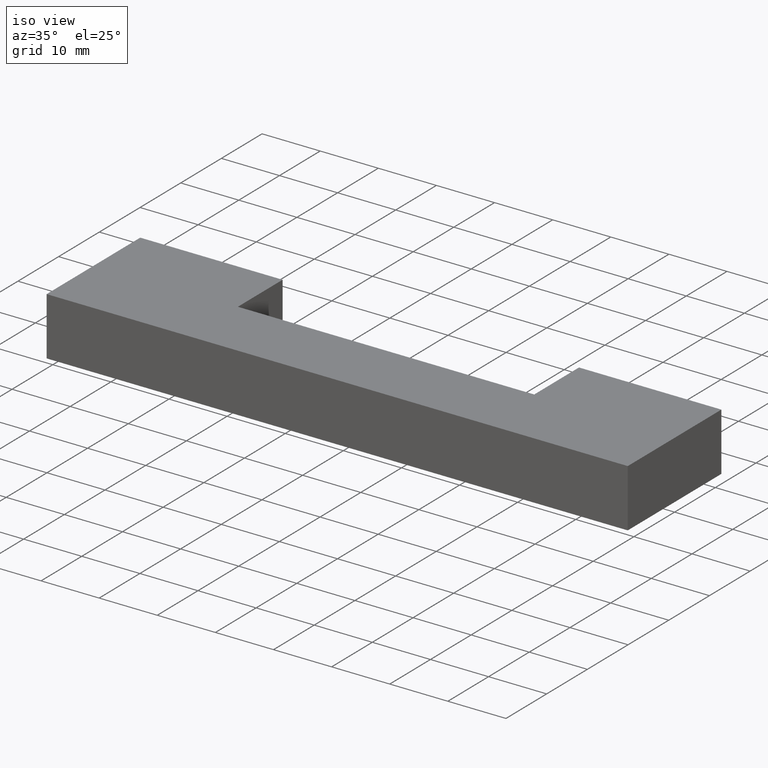
[diagram: clean part render]
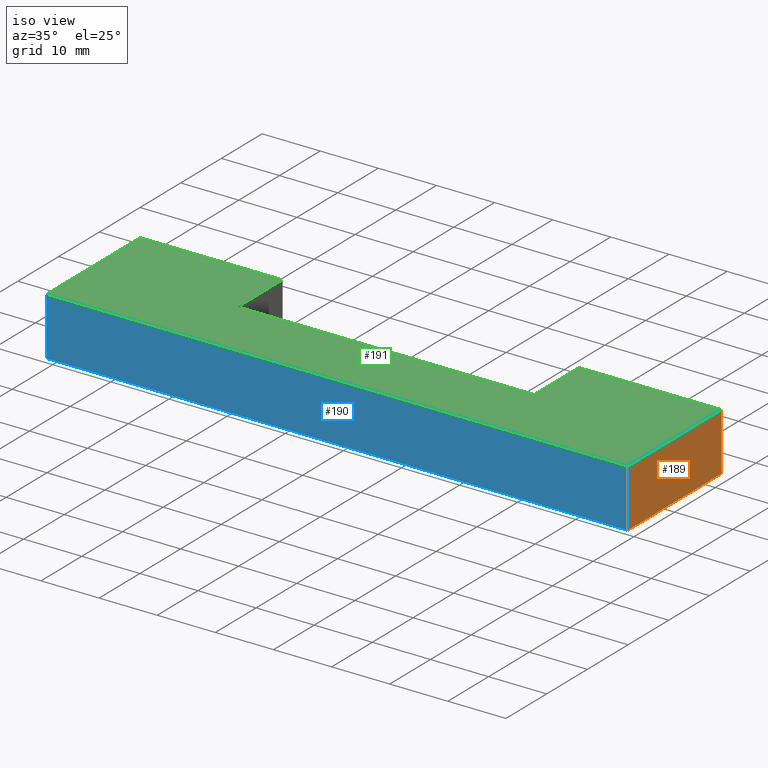
[diagram: same view with three faces highlighted in distinct colors, each labeled with its STEP entity id]
A machine part, iso view with three faces highlighted in distinct colors.
Their STEP definitions:

[orange] entity #189 — the highlighted planar face has unit normal (1, 0, 0).
#23=FACE_OUTER_BOUND('',#33,.T.);
#33=EDGE_LOOP('',(#156,#157,#158,#159));
#36=LINE('',#275,#60);
#56=LINE('',#314,#80);
#57=LINE('',#317,#81);
#58=LINE('',#318,#82);
#60=VECTOR('',#229,10.);
#80=VECTOR('',#261,10.);
#81=VECTOR('',#264,10.);
#82=VECTOR('',#265,10.);
#84=VERTEX_POINT('',#273);
#85=VERTEX_POINT('',#274);
#98=VERTEX_POINT('',#312);
#99=VERTEX_POINT('',#316);
#100=EDGE_CURVE('',#84,#85,#36,.T.);
#120=EDGE_CURVE('',#98,#85,#56,.T.);
#121=EDGE_CURVE('',#98,#99,#57,.T.);
#122=EDGE_CURVE('',#84,#99,#58,.T.);
#156=ORIENTED_EDGE('',*,*,#121,.T.);
#157=ORIENTED_EDGE('',*,*,#122,.F.);
#158=ORIENTED_EDGE('',*,*,#100,.T.);
#159=ORIENTED_EDGE('',*,*,#120,.F.);
#179=PLANE('',#222);
#189=ADVANCED_FACE('',(#23),#179,.T.);
#222=AXIS2_PLACEMENT_3D('',#315,#262,#263);
#229=DIRECTION('',(0.,1.,0.));
#261=DIRECTION('',(0.,0.,-1.));
#262=DIRECTION('center_axis',(1.,0.,0.));
#263=DIRECTION('ref_axis',(0.,0.,-1.));
#264=DIRECTION('',(0.,-1.,0.));
#265=DIRECTION('',(0.,0.,1.));
#273=CARTESIAN_POINT('',(50.,-11.5,-5.));
#274=CARTESIAN_POINT('',(50.,11.5,-5.));
#275=CARTESIAN_POINT('',(50.,11.5,-5.));
#312=CARTESIAN_POINT('',(50.,11.5,5.));
#314=CARTESIAN_POINT('',(50.,11.5,0.));
#315=CARTESIAN_POINT('Origin',(50.,11.5,0.));
#316=CARTESIAN_POINT('',(50.,-11.5,5.));
#317=CARTESIAN_POINT('',(50.,11.5,5.));
#318=CARTESIAN_POINT('',(50.,-11.5,0.));

[blue] entity #190 — the highlighted planar face has unit normal (0, -1, 0).
#24=FACE_OUTER_BOUND('',#34,.T.);
#34=EDGE_LOOP('',(#160,#161,#162,#163));
#37=LINE('',#277,#61);
#46=LINE('',#294,#70);
#58=LINE('',#318,#82);
#59=LINE('',#320,#83);
#61=VECTOR('',#230,10.);
#70=VECTOR('',#241,10.);
#82=VECTOR('',#265,10.);
#83=VECTOR('',#268,10.);
#84=VERTEX_POINT('',#273);
#86=VERTEX_POINT('',#276);
#92=VERTEX_POINT('',#290);
#99=VERTEX_POINT('',#316);
#101=EDGE_CURVE('',#86,#84,#37,.T.);
#110=EDGE_CURVE('',#92,#86,#46,.T.);
#122=EDGE_CURVE('',#84,#99,#58,.T.);
#123=EDGE_CURVE('',#99,#92,#59,.T.);
#160=ORIENTED_EDGE('',*,*,#123,.T.);
#161=ORIENTED_EDGE('',*,*,#110,.T.);
#162=ORIENTED_EDGE('',*,*,#101,.T.);
#163=ORIENTED_EDGE('',*,*,#122,.T.);
#180=PLANE('',#223);
#190=ADVANCED_FACE('',(#24),#180,.T.);
#223=AXIS2_PLACEMENT_3D('',#319,#266,#267);
#230=DIRECTION('',(1.,2.22044604925031E-17,0.));
#241=DIRECTION('',(0.,0.,-1.));
#265=DIRECTION('',(0.,0.,1.));
#266=DIRECTION('center_axis',(2.22044604925031E-17,-1.,0.));
#267=DIRECTION('ref_axis',(0.,0.,-1.));
#268=DIRECTION('',(-1.,-2.22044604925031E-17,0.));
#273=CARTESIAN_POINT('',(50.,-11.5,-5.));
#276=CARTESIAN_POINT('',(-50.,-11.5,-5.));
#277=CARTESIAN_POINT('',(50.,-11.5,-5.));
#290=CARTESIAN_POINT('',(-50.,-11.5,5.));
#294=CARTESIAN_POINT('',(-50.,-11.5,0.));
#316=CARTESIAN_POINT('',(50.,-11.5,5.));
#318=CARTESIAN_POINT('',(50.,-11.5,0.));
#319=CARTESIAN_POINT('Origin',(50.,-11.5,0.));
#320=CARTESIAN_POINT('',(50.,-11.5,5.));

[green] entity #191 — the highlighted planar face has unit normal (0, 0, 1).
#25=FACE_OUTER_BOUND('',#35,.T.);
#35=EDGE_LOOP('',(#164,#165,#166,#167,#168,#169,#170,#171));
#44=LINE('',#292,#68);
#47=LINE('',#297,#71);
#49=LINE('',#301,#73);
#51=LINE('',#305,#75);
#53=LINE('',#309,#77);
#55=LINE('',#313,#79);
#57=LINE('',#317,#81);
#59=LINE('',#320,#83);
#68=VECTOR('',#239,10.);
#71=VECTOR('',#244,10.);
#73=VECTOR('',#248,10.);
#75=VECTOR('',#252,10.);
#77=VECTOR('',#256,10.);
#79=VECTOR('',#260,10.);
#81=VECTOR('',#264,10.);
#83=VECTOR('',#268,10.);
#92=VERTEX_POINT('',#290);
#93=VERTEX_POINT('',#291);
#94=VERTEX_POINT('',#296);
#95=VERTEX_POINT('',#300);
#96=VERTEX_POINT('',#304);
#97=VERTEX_POINT('',#308);
#98=VERTEX_POINT('',#312);
#99=VERTEX_POINT('',#316);
#108=EDGE_CURVE('',#92,#93,#44,.T.);
#111=EDGE_CURVE('',#93,#94,#47,.T.);
#113=EDGE_CURVE('',#94,#95,#49,.T.);
#115=EDGE_CURVE('',#95,#96,#51,.T.);
#117=EDGE_CURVE('',#96,#97,#53,.T.);
#119=EDGE_CURVE('',#97,#98,#55,.T.);
#121=EDGE_CURVE('',#98,#99,#57,.T.);
#123=EDGE_CURVE('',#99,#92,#59,.T.);
#164=ORIENTED_EDGE('',*,*,#108,.F.);
#165=ORIENTED_EDGE('',*,*,#123,.F.);
#166=ORIENTED_EDGE('',*,*,#121,.F.);
#167=ORIENTED_EDGE('',*,*,#119,.F.);
#168=ORIENTED_EDGE('',*,*,#117,.F.);
#169=ORIENTED_EDGE('',*,*,#115,.F.);
#170=ORIENTED_EDGE('',*,*,#113,.F.);
#171=ORIENTED_EDGE('',*,*,#111,.F.);
#181=PLANE('',#224);
#191=ADVANCED_FACE('',(#25),#181,.T.);
#224=AXIS2_PLACEMENT_3D('',#321,#269,#270);
#239=DIRECTION('',(0.,1.,0.));
#244=DIRECTION('',(1.,2.71891352969426E-16,0.));
#248=DIRECTION('',(4.03717463500056E-16,-1.,0.));
#252=DIRECTION('',(1.,0.,0.));
#256=DIRECTION('',(4.03717463500056E-16,1.,0.));
#260=DIRECTION('',(1.,-1.81260901979617E-16,0.));
#264=DIRECTION('',(0.,-1.,0.));
#268=DIRECTION('',(-1.,-2.22044604925031E-17,0.));
#269=DIRECTION('center_axis',(0.,0.,1.));
#270=DIRECTION('ref_axis',(1.,0.,0.));
#290=CARTESIAN_POINT('',(-50.,-11.5,5.));
#291=CARTESIAN_POINT('',(-50.,11.5,5.));
#292=CARTESIAN_POINT('',(-50.,-11.5,5.));
#296=CARTESIAN_POINT('',(-25.5,11.5,5.));
#297=CARTESIAN_POINT('',(-50.,11.5,5.));
#300=CARTESIAN_POINT('',(-25.5,0.499999999999983,5.));
#301=CARTESIAN_POINT('',(-25.5,11.5,5.));
#304=CARTESIAN_POINT('',(25.5,0.499999999999983,5.));
#305=CARTESIAN_POINT('',(-25.5,0.499999999999983,5.));
#308=CARTESIAN_POINT('',(25.5,11.5,5.));
#309=CARTESIAN_POINT('',(25.5,0.499999999999983,5.));
#312=CARTESIAN_POINT('',(50.,11.5,5.));
#313=CARTESIAN_POINT('',(25.5,11.5,5.));
#316=CARTESIAN_POINT('',(50.,-11.5,5.));
#317=CARTESIAN_POINT('',(50.,11.5,5.));
#320=CARTESIAN_POINT('',(50.,-11.5,5.));
#321=CARTESIAN_POINT('Origin',(-5.55111512312578E-16,-1.60074626865672,
5.));